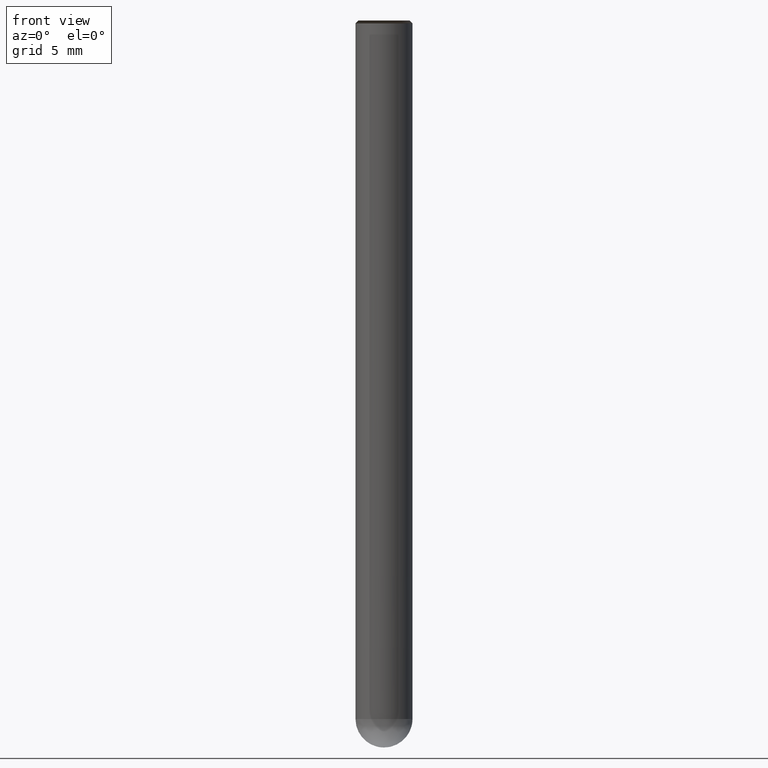
[diagram: clean part render]
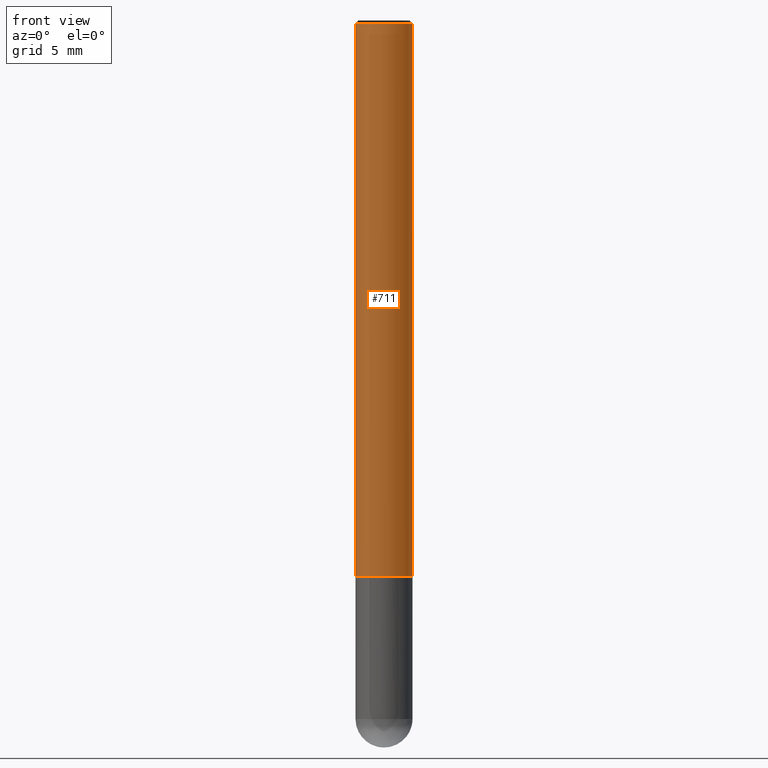
[diagram: same view with one face highlighted and labeled with its STEP entity id]
A machine part, front view. The second image highlights one B-rep face of the part: STEP entity #711.
In plain terms, the highlighted face is a freeform B-spline surface patch.
Its self-contained STEP definition (entity closure, byte-faithful):
#425=CARTESIAN_POINT('',(2.0,0.0,0.0));
#429=CARTESIAN_POINT('',(-2.0,0.0,0.0));
#430=CARTESIAN_POINT('',(2.0,0.0,38.8));
#434=CARTESIAN_POINT('',(-2.0,0.0,38.8));
#441=CARTESIAN_POINT('',(-2.0,-2.0,0.0));
#442=CARTESIAN_POINT('',(0.0,-2.0,0.0));
#443=CARTESIAN_POINT('',(2.0,-2.0,0.0));
#444=CARTESIAN_POINT('',(-2.0,-2.0,38.8));
#445=CARTESIAN_POINT('',(0.0,-2.0,38.8));
#446=CARTESIAN_POINT('',(2.0,-2.0,38.8));
#692=(
BOUNDED_SURFACE()
B_SPLINE_SURFACE(1,2,(
(#429,#441,#442,#443,#425),
(#434,#444,#445,#446,#430)
), .UNSPECIFIED.,.F.,.F.,.F.)
B_SPLINE_SURFACE_WITH_KNOTS((2,2),(3,2,3),(
0.0,1.0),(
0.0,0.5,1.0), .UNSPECIFIED.)
GEOMETRIC_REPRESENTATION_ITEM()
RATIONAL_B_SPLINE_SURFACE(((1.0,0.707106781187,1.0,0.707106781187,1.0),
(1.0,0.707106781187,1.0,0.707106781187,1.0)
))
REPRESENTATION_ITEM('')
SURFACE()
);
#693=(
BOUNDED_CURVE()
B_SPLINE_CURVE(2,(#425,#443,#442,#441,#429),.UNSPECIFIED.,.F.,.F.)
B_SPLINE_CURVE_WITH_KNOTS((3,2,3),
(0.0,0.5,1.0),.UNSPECIFIED.)
CURVE()
GEOMETRIC_REPRESENTATION_ITEM()
RATIONAL_B_SPLINE_CURVE((1.0,0.707106781187,1.0,0.707106781187,1.0))
REPRESENTATION_ITEM('')
);
#694=(
BOUNDED_CURVE()
B_SPLINE_CURVE(1,(#429,#434),.UNSPECIFIED.,.F.,.F.)
B_SPLINE_CURVE_WITH_KNOTS((2,2),
(0.0,1.0),.UNSPECIFIED.)
CURVE()
GEOMETRIC_REPRESENTATION_ITEM()
RATIONAL_B_SPLINE_CURVE((1.0,1.0))
REPRESENTATION_ITEM('')
);
#695=(
BOUNDED_CURVE()
B_SPLINE_CURVE(2,(#434,#444,#445,#446,#430),.UNSPECIFIED.,.F.,.F.)
B_SPLINE_CURVE_WITH_KNOTS((3,2,3),
(0.0,0.5,1.0),.UNSPECIFIED.)
CURVE()
GEOMETRIC_REPRESENTATION_ITEM()
RATIONAL_B_SPLINE_CURVE((1.0,0.707106781187,1.0,0.707106781187,1.0))
REPRESENTATION_ITEM('')
);
#696=(
BOUNDED_CURVE()
B_SPLINE_CURVE(1,(#430,#425),.UNSPECIFIED.,.F.,.F.)
B_SPLINE_CURVE_WITH_KNOTS((2,2),
(0.0,1.0),.UNSPECIFIED.)
CURVE()
GEOMETRIC_REPRESENTATION_ITEM()
RATIONAL_B_SPLINE_CURVE((1.0,1.0))
REPRESENTATION_ITEM('')
);
#697=VERTEX_POINT('',#425);
#698=VERTEX_POINT('',#429);
#699=VERTEX_POINT('',#430);
#700=VERTEX_POINT('',#434);
#701=EDGE_CURVE('',#697,#698,#693,.T.);
#702=EDGE_CURVE('',#698,#700,#694,.T.);
#703=EDGE_CURVE('',#700,#699,#695,.T.);
#704=EDGE_CURVE('',#699,#697,#696,.T.);
#705=ORIENTED_EDGE('',*,*,#701,.T.);
#706=ORIENTED_EDGE('',*,*,#702,.T.);
#707=ORIENTED_EDGE('',*,*,#703,.T.);
#708=ORIENTED_EDGE('',*,*,#704,.T.);
#709=EDGE_LOOP('',(#705,#706,#707,#708));
#710=FACE_OUTER_BOUND('',#709,.T.);
#711=ADVANCED_FACE('',(#710),#692,.T.);